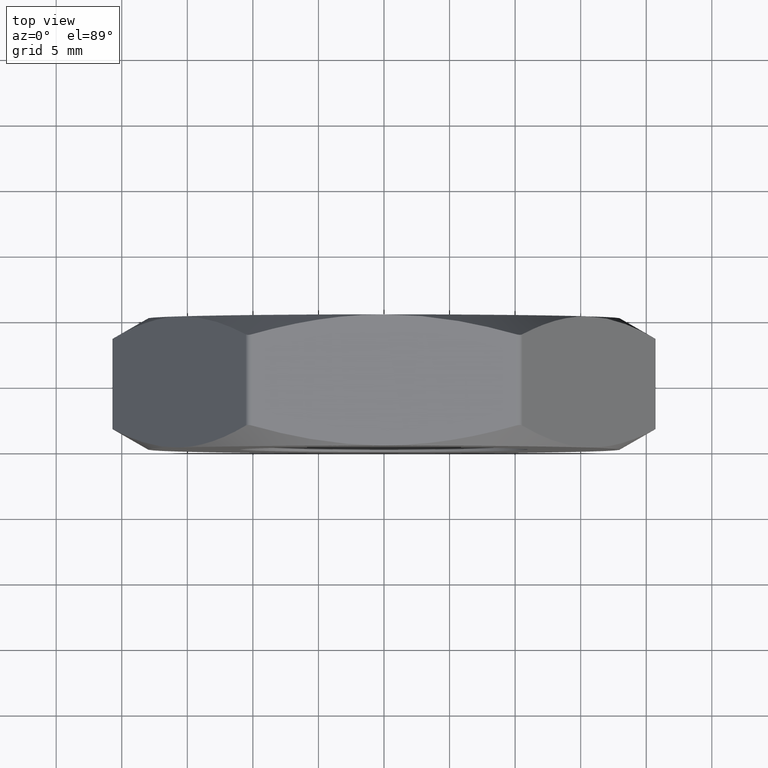
[diagram: clean part render]
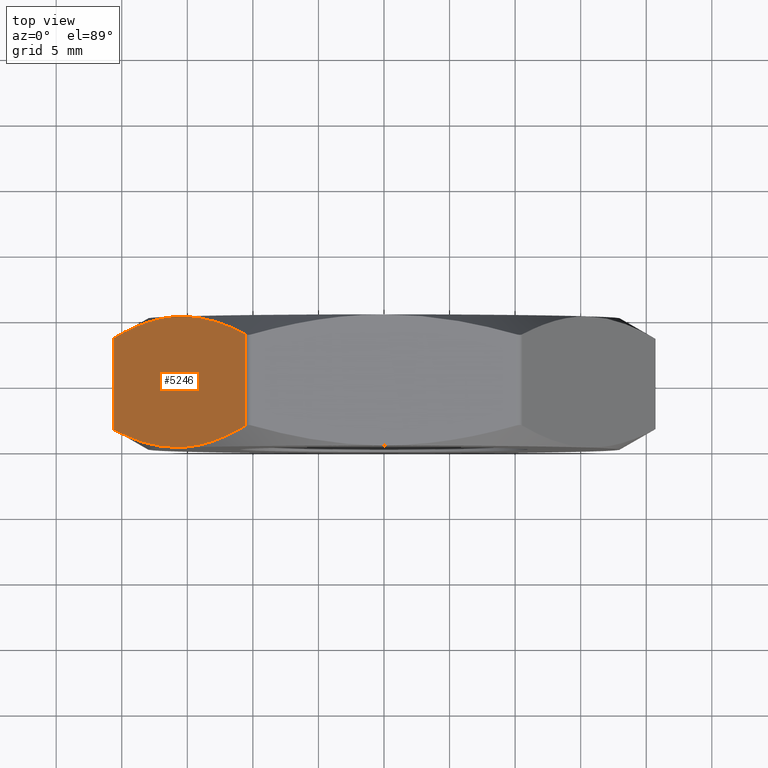
[diagram: same view with one face highlighted and labeled with its STEP entity id]
A machine part, top view. The second image highlights one B-rep face of the part: STEP entity #5246.
In plain terms, the highlighted planar face has unit normal (0.866, 0, -0.5).
Its self-contained STEP definition (entity closure, byte-faithful):
#367 = EDGE_CURVE ( 'NONE', #11464, #614, #12959, .T. ) ;
#614 = VERTEX_POINT ( 'NONE', #13413 ) ;
#803 = CARTESIAN_POINT ( 'NONE',  ( -16.44868394276425505, -5.000000000000003553, 7.510043693489953931 ) ) ;
#1031 = CARTESIAN_POINT ( 'NONE',  ( -12.19278145015596237, -4.324295589834004083, 14.88148304274652922 ) ) ;
#1071 = CARTESIAN_POINT ( 'NONE',  ( -20.64027212352911533, 5.000000000000000000, 0.2500000000000020539 ) ) ;
#1642 = EDGE_CURVE ( 'NONE', #5722, #7053, #6084, .T. ) ;
#1716 = VERTEX_POINT ( 'NONE', #15152 ) ;
#2503 = CARTESIAN_POINT ( 'NONE',  ( -20.78460969082652454, 5.000000000000000000, 4.296142401927783835E-17 ) ) ;
#2692 = LINE ( 'NONE', #13779, #3893 ) ;
#2810 = CARTESIAN_POINT ( 'NONE',  ( -13.87838744799873680, 4.855426502465720162, 11.96192781294000440 ) ) ;
#2895 = CARTESIAN_POINT ( 'NONE',  ( -16.44668568854905999, 4.955776413173643036, 7.513504771317089492 ) ) ;
#3360 = CARTESIAN_POINT ( 'NONE',  ( -10.53664241271052404, 3.474764084930033192, 17.75000000000024514 ) ) ;
#3494 = CARTESIAN_POINT ( 'NONE',  ( -13.45470436724229124, -4.722150001668020458, 12.69576843511748088 ) ) ;
#3893 = VECTOR ( 'NONE', #6249, 1000.000000000000000 ) ;
#4181 = CARTESIAN_POINT ( 'NONE',  ( -17.29911597758647801, 4.825147480787583376, 6.037052200793661783 ) ) ;
#4229 = CARTESIAN_POINT ( 'NONE',  ( -15.80269449085430722, 5.000000000000003553, 8.628930245351545736 ) ) ;
#4722 = CARTESIAN_POINT ( 'NONE',  ( -10.53664241271066793, -3.474764084930117125, 17.74999999999999645 ) ) ;
#5200 = EDGE_CURVE ( 'NONE', #7053, #6128, #2692, .T. ) ;
#5241 = FACE_OUTER_BOUND ( 'NONE', #10647, .T. ) ;
#5246 = ADVANCED_FACE ( 'NONE', ( #5241 ), #11179, .F. ) ;
#5304 = EDGE_CURVE ( 'NONE', #6128, #1716, #7647, .T. ) ;
#5400 = CARTESIAN_POINT ( 'NONE',  ( -15.58845726811989429, 5.000000000000000000, 9.000000000000000000 ) ) ;
#5425 = CARTESIAN_POINT ( 'NONE',  ( -16.01798673103119341, 4.991100823725132862, 8.256033146889851793 ) ) ;
#5722 = VERTEX_POINT ( 'NONE', #7434 ) ;
#5850 = CARTESIAN_POINT ( 'NONE',  ( -18.98092775833401546, -4.325605780329642158, 3.124068747771047150 ) ) ;
#6084 = B_SPLINE_CURVE_WITH_KNOTS ( 'NONE', 3,
 ( #8541, #13498, #7228, #12169, #13445, #11005, #3494, #1031, #15977, #4722 ),
 .UNSPECIFIED., .F., .F.,
 ( 4, 2, 2, 2, 4 ),
 ( 0.01051554819734979752, 0.01178791190731938270, 0.01306027561728896787, 0.01560500303722813648, 0.02069445787710647716 ),
 .UNSPECIFIED. ) ;
#6128 = VERTEX_POINT ( 'NONE', #3360 ) ;
#6244 = B_SPLINE_CURVE_WITH_KNOTS ( 'NONE', 3,
 ( #10939, #12098, #5850, #8378, #803, #12155 ),
 .UNSPECIFIED., .F., .F.,
 ( 4, 2, 4 ),
 ( 0.0002977047320976027901, 0.005406626464723699940, 0.01051554819734979752 ),
 .UNSPECIFIED. ) ;
#6249 = DIRECTION ( 'NONE',  ( -0.000000000000000000, 1.000000000000000000, -0.000000000000000000 ) ) ;
#6634 = CARTESIAN_POINT ( 'NONE',  ( -19.81562494357227422, 3.940851841110033504, 1.678330814003640814 ) ) ;
#6683 = CARTESIAN_POINT ( 'NONE',  ( -20.64027212352911533, 3.474764084930116237, 0.2500000000000018319 ) ) ;
#7053 = VERTEX_POINT ( 'NONE', #10228 ) ;
#7228 = CARTESIAN_POINT ( 'NONE',  ( -15.15892780520859340, -4.991100823725133750, 9.743966853110142878 ) ) ;
#7434 = CARTESIAN_POINT ( 'NONE',  ( -15.58845726811989429, -5.000000000000000000, 9.000000000000000000 ) ) ;
#7647 = B_SPLINE_CURVE_WITH_KNOTS ( 'NONE', 3,
 ( #7700, #10391, #15268, #2810, #11599, #5400 ),
 .UNSPECIFIED., .F., .F.,
 ( 4, 2, 4 ),
 ( 0.0002977047320975966644, 0.005406626464723697338, 0.01051554819734979926 ),
 .UNSPECIFIED. ) ;
#7700 = CARTESIAN_POINT ( 'NONE',  ( -10.53664241271052404, 3.474764084930033192, 17.75000000000024514 ) ) ;
#8371 = CARTESIAN_POINT ( 'NONE',  ( -20.64027212352911533, 3.474764084930116237, 0.2500000000000018319 ) ) ;
#8378 = CARTESIAN_POINT ( 'NONE',  ( -17.29852708824104468, -4.855426502465721050, 6.038072187059994711 ) ) ;
#8433 = B_SPLINE_CURVE_WITH_KNOTS ( 'NONE', 3,
 ( #12904, #4229, #5425, #2895, #14400, #4181, #14221, #10518, #6634, #6683 ),
 .UNSPECIFIED., .F., .F.,
 ( 4, 2, 2, 2, 4 ),
 ( 0.01051554819734979926, 0.01178791190731938270, 0.01306027561728896960, 0.01560500303722813994, 0.02069445787710647716 ),
 .UNSPECIFIED. ) ;
#8541 = CARTESIAN_POINT ( 'NONE',  ( -15.58845726811989429, -5.000000000000000000, 9.000000000000000000 ) ) ;
#8959 = DIRECTION ( 'NONE',  ( 0.000000000000000000, -1.000000000000000000, 0.000000000000000000 ) ) ;
#9253 = EDGE_CURVE ( 'NONE', #1716, #11464, #8433, .T. ) ;
#10228 = CARTESIAN_POINT ( 'NONE',  ( -10.53664241271066793, -3.474764084930117125, 17.74999999999999645 ) ) ;
#10282 = ORIENTED_EDGE ( 'NONE', *, *, #9253, .T. ) ;
#10300 = ORIENTED_EDGE ( 'NONE', *, *, #1642, .T. ) ;
#10391 = CARTESIAN_POINT ( 'NONE',  ( -11.36331173878490297, 3.941994751156219667, 16.31816672618070285 ) ) ;
#10518 = CARTESIAN_POINT ( 'NONE',  ( -18.98413308608382266, 4.324295589834001419, 3.118516957253466337 ) ) ;
#10647 = EDGE_LOOP ( 'NONE', ( #10282, #14435, #14284, #10300, #13523, #15627 ) ) ;
#10939 = CARTESIAN_POINT ( 'NONE',  ( -20.64027212352925744, -3.474764084930035857, 0.2499999999997561118 ) ) ;
#10990 = VECTOR ( 'NONE', #8959, 1000.000000000000000 ) ;
#11005 = CARTESIAN_POINT ( 'NONE',  ( -13.87779855865330703, -4.825147480787583376, 11.96294779920633644 ) ) ;
#11179 = PLANE ( 'NONE',  #12213 ) ;
#11283 = DIRECTION ( 'NONE',  ( -0.5000000000000000000, 0.000000000000000000, -0.8660254037844385966 ) ) ;
#11464 = VERTEX_POINT ( 'NONE', #8371 ) ;
#11599 = CARTESIAN_POINT ( 'NONE',  ( -14.72823059347553709, 5.000000000000002665, 10.48995630651004696 ) ) ;
#12098 = CARTESIAN_POINT ( 'NONE',  ( -19.81360279745487318, -3.941994751156223220, 1.681833273819301589 ) ) ;
#12155 = CARTESIAN_POINT ( 'NONE',  ( -15.58845726811989429, -5.000000000000000000, 9.000000000000000000 ) ) ;
#12169 = CARTESIAN_POINT ( 'NONE',  ( -14.73022884769072327, -4.955776413173643036, 10.48649522868290340 ) ) ;
#12213 = AXIS2_PLACEMENT_3D ( 'NONE', #2503, #13729, #11283 ) ;
#12246 = EDGE_CURVE ( 'NONE', #614, #5722, #6244, .T. ) ;
#12904 = CARTESIAN_POINT ( 'NONE',  ( -15.58845726811989429, 5.000000000000000000, 9.000000000000000000 ) ) ;
#12959 = LINE ( 'NONE', #1071, #10990 ) ;
#13413 = CARTESIAN_POINT ( 'NONE',  ( -20.64027212352925744, -3.474764084930035857, 0.2499999999997561118 ) ) ;
#13445 = CARTESIAN_POINT ( 'NONE',  ( -14.51660190834004993, -4.929390122363204618, 10.85650794150370579 ) ) ;
#13498 = CARTESIAN_POINT ( 'NONE',  ( -15.37422004538547959, -5.000000000000002665, 9.371069754648450711 ) ) ;
#13523 = ORIENTED_EDGE ( 'NONE', *, *, #5200, .T. ) ;
#13729 = DIRECTION ( 'NONE',  ( 0.8660254037844387076, 0.000000000000000000, -0.5000000000000001110 ) ) ;
#13779 = CARTESIAN_POINT ( 'NONE',  ( -10.53664241271066615, 5.000000000000000000, 17.75000000000000000 ) ) ;
#14221 = CARTESIAN_POINT ( 'NONE',  ( -17.72221016899749202, 4.722150001668016905, 5.304231564882512906 ) ) ;
#14284 = ORIENTED_EDGE ( 'NONE', *, *, #12246, .T. ) ;
#14400 = CARTESIAN_POINT ( 'NONE',  ( -16.66031262789973511, 4.929390122363203730, 7.143492058496286212 ) ) ;
#14435 = ORIENTED_EDGE ( 'NONE', *, *, #367, .T. ) ;
#15152 = CARTESIAN_POINT ( 'NONE',  ( -15.58845726811989429, 5.000000000000000000, 9.000000000000000000 ) ) ;
#15268 = CARTESIAN_POINT ( 'NONE',  ( -12.19598677790576957, 4.325605780329639494, 14.87593125222895729 ) ) ;
#15627 = ORIENTED_EDGE ( 'NONE', *, *, #5304, .T. ) ;
#15977 = CARTESIAN_POINT ( 'NONE',  ( -11.36128959266750371, -3.940851841110031728, 16.32166918599634897 ) ) ;